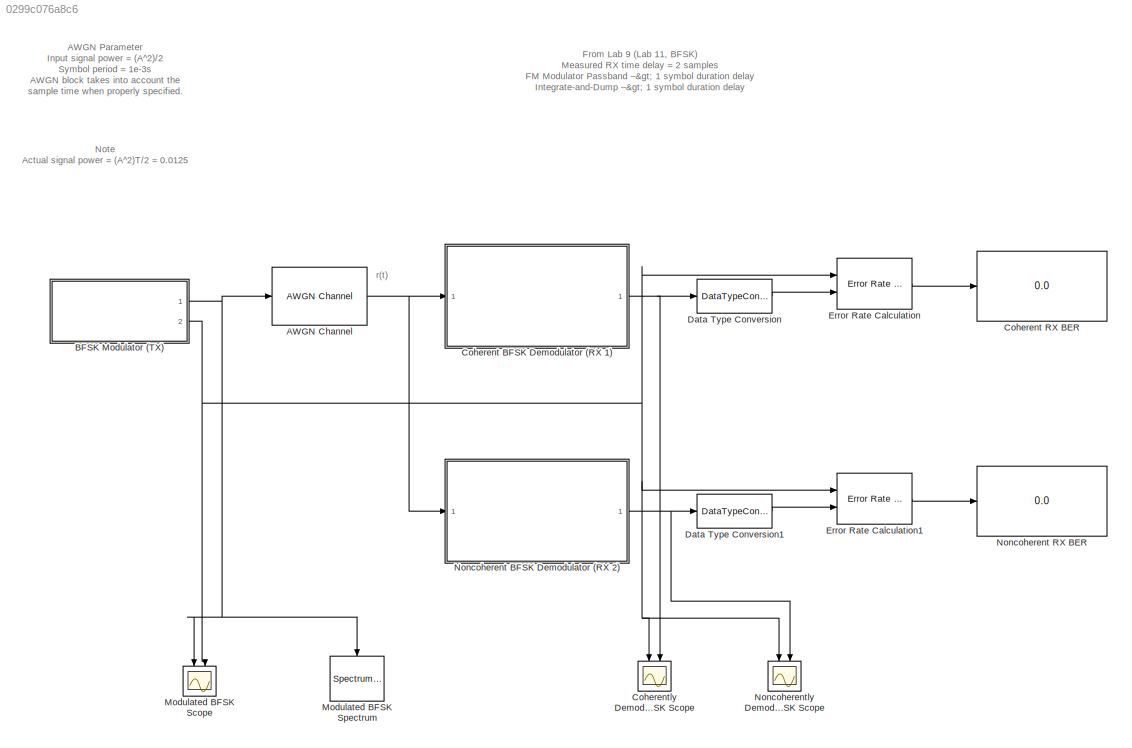
MODEL slx_0299c076a8c6
KIND model
CONFIG AbsTol = auto
CONFIG EnableMultiTasking = off
CONFIG FixedStep = auto
CONFIG MaxStep = auto
CONFIG MinStep = auto
CONFIG RelTol = 1e-3
CONFIG SampleTimeConstraint = Unconstrained
CONFIG SolverName = VariableStepAuto
CONFIG StartTime = 0.0
CONFIG StopTime = 2
BLOCK [Reference] AWGN Channel  REF=commchan3/AWGN
Channel
  Ports = [1, 1]
  SourceBlock = commchan3/AWGN\nChannel
  SourceProductBaseCode = CM
  SourceType = AWGN Channel
  UserDataPersistent = on
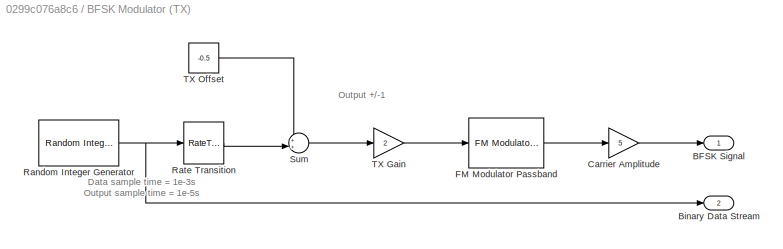
BLOCK [SubSystem] BFSK Modulator (TX)
  Ports = [0, 2]
  RequestExecContextInheritance = off
BLOCK [Outport] BFSK Modulator (TX)/BFSK Signal
BLOCK [Outport] BFSK Modulator (TX)/Binary Data Stream
  Port = 2
BLOCK [Gain] BFSK Modulator (TX)/Carrier Amplitude
  Gain = 5
BLOCK [Reference] BFSK Modulator (TX)/FM Modulator Passband  REF=commanapbnd3/FM
Modulator
Passband
  Ports = [1, 1]
  SourceBlock = commanapbnd3/FM\nModulator\nPassband
  SourceProductBaseCode = CM
  SourceType = FM Modulator Passband
BLOCK [Reference] BFSK Modulator (TX)/Random Integer Generator  REF=commrandsrc3/Random Integer
Generator
  Ports = [0, 1]
  SourceBlock = commrandsrc3/Random Integer\nGenerator
  SourceProductBaseCode = CM
  SourceType = Random Integer Generator
BLOCK [RateTransition] BFSK Modulator (TX)/Rate Transition
  OutPortSampleTime = 1e-5
BLOCK [Sum] BFSK Modulator (TX)/Sum
  Inputs = ++|
  Ports = [2, 1]
BLOCK [Gain] BFSK Modulator (TX)/TX Gain
  Gain = 2
BLOCK [Constant] BFSK Modulator (TX)/TX Offset
  Value = -0.5
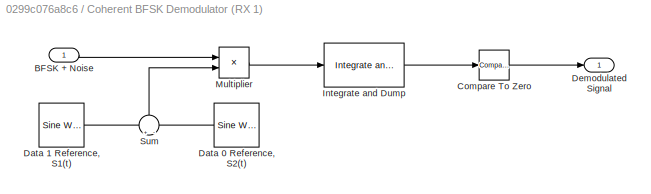
BLOCK [SubSystem] Coherent BFSK Demodulator (RX 1)
  Ports = [1, 1]
  RequestExecContextInheritance = off
BLOCK [Inport] Coherent BFSK Demodulator (RX 1)/BFSK + Noise
BLOCK [Reference] Coherent BFSK Demodulator (RX 1)/Compare To Zero  REF=simulink/Logic and Bit
Operations/Compare
To Zero
  Ports = [1, 1]
  SourceBlock = simulink/Logic and Bit\nOperations/Compare\nTo Zero
  SourceProductBaseCode = SL
  SourceType = Compare To Zero
BLOCK [Reference] Coherent BFSK Demodulator (RX 1)/Data 0 Reference, S2(t)  REF=dspsrcs4/Sine Wave
  Ports = [0, 1]
  SourceBlock = dspsrcs4/Sine Wave
  SourceProductBaseCode = DS
  SourceType = Sine Wave
BLOCK [Reference] Coherent BFSK Demodulator (RX 1)/Data 1 Reference, S1(t)  REF=dspsrcs4/Sine Wave
  Ports = [0, 1]
  SourceBlock = dspsrcs4/Sine Wave
  SourceProductBaseCode = DS
  SourceType = Sine Wave
BLOCK [Outport] Coherent BFSK Demodulator (RX 1)/Demodulated Signal
  OutDataTypeStr = uint8
BLOCK [Reference] Coherent BFSK Demodulator (RX 1)/Integrate and Dump  REF=commfilt2/Integrate
and Dump
  Ports = [1, 1]
  SourceBlock = commfilt2/Integrate\nand Dump
  SourceProductBaseCode = CM
  SourceType = Integrate and Dump
BLOCK [Product] Coherent BFSK Demodulator (RX 1)/Multiplier
  Ports = [2, 1]
BLOCK [Sum] Coherent BFSK Demodulator (RX 1)/Sum
  Inputs = +|-
  NameLocation = right
  Ports = [2, 1]
BLOCK [Display] Coherent RX BER
  Decimation = 14
  Format = long
  Ports = [1]
BLOCK [Scope] Coherently Demodulated BFSK Scope
  Floating = off
  NameLocation = left
  NumInputPorts = 2
  Ports = [2]
  ScopeSpecificationString = Simulink.scopes.TimeScopeBlockCfg('CurrentConfiguration', extmgr.ConfigurationSet(extmgr.Configuration('Core','General UI',true),extmgr.Configuration('Core','Source UI',true),extmgr.Configuration('Sources','WiredSimulink',true,'DataLoggingVariableName','ScopeData1'),extmgr.Configuration('Visuals','Time Domain',true,'SerializedDisplays',{struct('MinYLimReal','-0.08672','MaxYLimReal','1.08069','YLab...<+1910ch>
BLOCK [DataTypeConversion] Data Type Conversion
  OutDataTypeStr = double
  RndMeth = Floor
  SaturateOnIntegerOverflow = off
BLOCK [DataTypeConversion] Data Type Conversion1
  OutDataTypeStr = double
  RndMeth = Floor
  SaturateOnIntegerOverflow = off
BLOCK [Reference] Error Rate Calculation  REF=commsink2/Error Rate
Calculation
  Ports = [2, 1]
  SourceBlock = commsink2/Error Rate\nCalculation
  SourceProductBaseCode = CM
  SourceType = Error Rate Calculation
BLOCK [Reference] Error Rate Calculation1  REF=commsink2/Error Rate
Calculation
  Ports = [2, 1]
  SourceBlock = commsink2/Error Rate\nCalculation
  SourceProductBaseCode = CM
  SourceType = Error Rate Calculation
BLOCK [Scope] Modulated BFSK Scope
  Floating = off
  NameLocation = left
  NumInputPorts = 2
  Ports = [2]
  ScopeSpecificationString = Simulink.scopes.TimeScopeBlockCfg('CurrentConfiguration', extmgr.ConfigurationSet(extmgr.Configuration('Core','General UI',true),extmgr.Configuration('Core','Source UI',true),extmgr.Configuration('Sources','WiredSimulink',true),extmgr.Configuration('Visuals','Time Domain',true,'SerializedDisplays',{struct('MinYLimReal','-6.23767','MaxYLimReal','6.23767','YLabelReal','Amplitude','MinYLimMag','0.000...<+1818ch>
BLOCK [SpectrumAnalyzer] Modulated BFSK Spectrum
  NameLocation = left
  Ports = [1]
  ScopeSpecificationString = spbscopes.SpectrumAnalyzerBlockCfg('CurrentConfiguration', extmgr.ConfigurationSet(extmgr.Configuration('Core','General UI',true),extmgr.Configuration('Core','Source UI',true),extmgr.Configuration('Sources','WiredSimulink',true),extmgr.Configuration('Sources','SPTool',false),extmgr.Configuration('Sources','File',false),extmgr.Configuration('Sources','Workspace',false),extmgr.Configuration('Sources...<+3625ch>
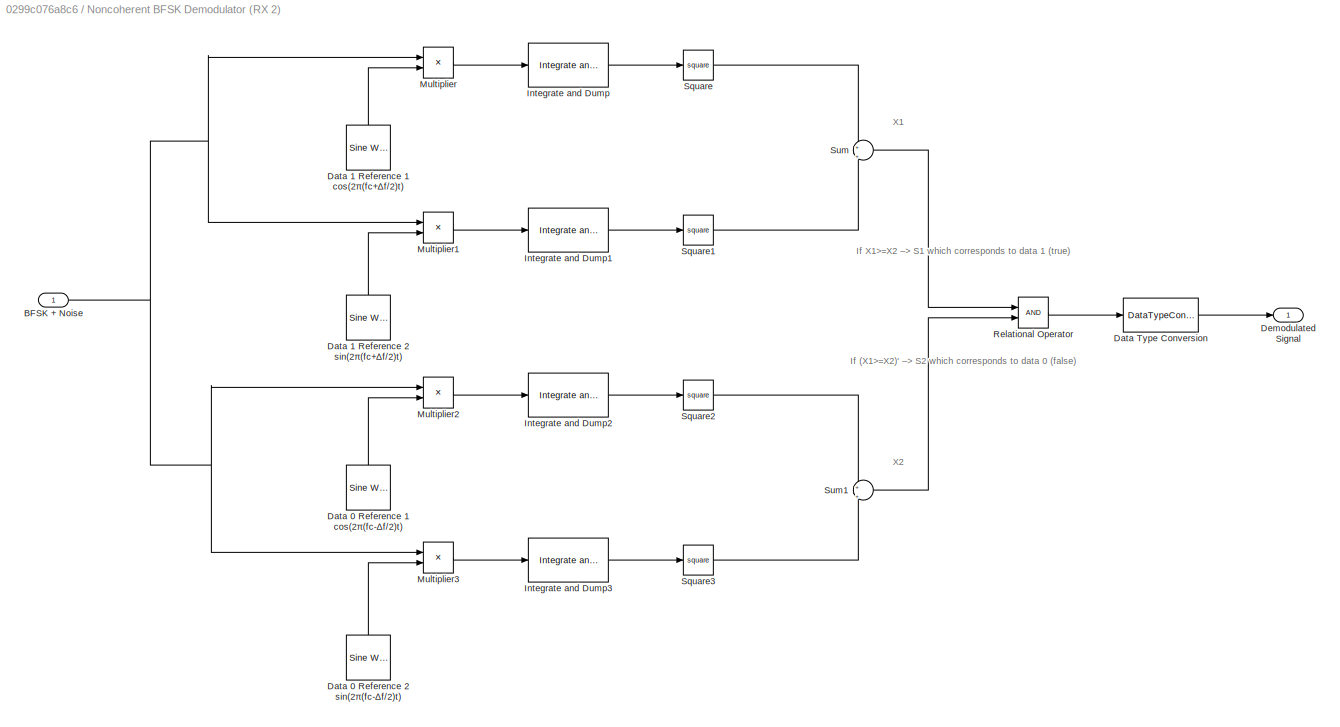
BLOCK [SubSystem] Noncoherent BFSK Demodulator (RX 2)
  Ports = [1, 1]
  RequestExecContextInheritance = off
BLOCK [Inport] Noncoherent BFSK Demodulator (RX 2)/BFSK + Noise
BLOCK [Reference] Noncoherent BFSK Demodulator (RX 2)/Data 0 Reference 1 cos(2π(fc-∆f//2)t)  REF=dspsrcs4/Sine Wave
  NameLocation = left
  Ports = [0, 1]
  SourceBlock = dspsrcs4/Sine Wave
  SourceProductBaseCode = DS
  SourceType = Sine Wave
BLOCK [Reference] Noncoherent BFSK Demodulator (RX 2)/Data 0 Reference 2 sin(2π(fc-∆f//2)t)  REF=dspsrcs4/Sine Wave
  NameLocation = left
  Ports = [0, 1]
  SourceBlock = dspsrcs4/Sine Wave
  SourceProductBaseCode = DS
  SourceType = Sine Wave
BLOCK [Reference] Noncoherent BFSK Demodulator (RX 2)/Data 1 Reference 1 cos(2π(fc+∆f//2)t)  REF=dspsrcs4/Sine Wave
  NameLocation = left
  Ports = [0, 1]
  SourceBlock = dspsrcs4/Sine Wave
  SourceProductBaseCode = DS
  SourceType = Sine Wave
BLOCK [Reference] Noncoherent BFSK Demodulator (RX 2)/Data 1 Reference 2 sin(2π(fc+∆f//2)t)  REF=dspsrcs4/Sine Wave
  NameLocation = left
  Ports = [0, 1]
  SourceBlock = dspsrcs4/Sine Wave
  SourceProductBaseCode = DS
  SourceType = Sine Wave
BLOCK [DataTypeConversion] Noncoherent BFSK Demodulator (RX 2)/Data Type Conversion
  OutDataTypeStr = uint8
  RndMeth = Floor
  SaturateOnIntegerOverflow = off
BLOCK [Outport] Noncoherent BFSK Demodulator (RX 2)/Demodulated Signal
  OutDataTypeStr = uint8
BLOCK [Reference] Noncoherent BFSK Demodulator (RX 2)/Integrate and Dump  REF=commfilt2/Integrate
and Dump
  Ports = [1, 1]
  SourceBlock = commfilt2/Integrate\nand Dump
  SourceProductBaseCode = CM
  SourceType = Integrate and Dump
BLOCK [Reference] Noncoherent BFSK Demodulator (RX 2)/Integrate and Dump1  REF=commfilt2/Integrate
and Dump
  Ports = [1, 1]
  SourceBlock = commfilt2/Integrate\nand Dump
  SourceProductBaseCode = CM
  SourceType = Integrate and Dump
BLOCK [Reference] Noncoherent BFSK Demodulator (RX 2)/Integrate and Dump2  REF=commfilt2/Integrate
and Dump
  Ports = [1, 1]
  SourceBlock = commfilt2/Integrate\nand Dump
  SourceProductBaseCode = CM
  SourceType = Integrate and Dump
BLOCK [Reference] Noncoherent BFSK Demodulator (RX 2)/Integrate and Dump3  REF=commfilt2/Integrate
and Dump
  Ports = [1, 1]
  SourceBlock = commfilt2/Integrate\nand Dump
  SourceProductBaseCode = CM
  SourceType = Integrate and Dump
BLOCK [Product] Noncoherent BFSK Demodulator (RX 2)/Multiplier
  Ports = [2, 1]
BLOCK [Product] Noncoherent BFSK Demodulator (RX 2)/Multiplier1
  Ports = [2, 1]
BLOCK [Product] Noncoherent BFSK Demodulator (RX 2)/Multiplier2
  Ports = [2, 1]
BLOCK [Product] Noncoherent BFSK Demodulator (RX 2)/Multiplier3
  Ports = [2, 1]
BLOCK [RelationalOperator] Noncoherent BFSK Demodulator (RX 2)/Relational Operator
  InputSameDT = off
  Ports = [2, 1]
  RndMeth = Simplest
BLOCK [Math] Noncoherent BFSK Demodulator (RX 2)/Square
  Operator = square
  Ports = [1, 1]
BLOCK [Math] Noncoherent BFSK Demodulator (RX 2)/Square1
  Operator = square
  Ports = [1, 1]
BLOCK [Math] Noncoherent BFSK Demodulator (RX 2)/Square2
  Operator = square
  Ports = [1, 1]
BLOCK [Math] Noncoherent BFSK Demodulator (RX 2)/Square3
  Operator = square
  Ports = [1, 1]
BLOCK [Sum] Noncoherent BFSK Demodulator (RX 2)/Sum
  Inputs = +||+
  Ports = [2, 1]
BLOCK [Sum] Noncoherent BFSK Demodulator (RX 2)/Sum1
  Inputs = +||+
  Ports = [2, 1]
BLOCK [Display] Noncoherent RX BER
  Decimation = 14
  Format = long
  Ports = [1]
BLOCK [Scope] Noncoherently Demodulated BFSK Scope
  Floating = off
  NameLocation = left
  NumInputPorts = 2
  Ports = [2]
  ScopeSpecificationString = Simulink.scopes.TimeScopeBlockCfg('CurrentConfiguration', extmgr.ConfigurationSet(extmgr.Configuration('Core','General UI',true),extmgr.Configuration('Core','Source UI',true),extmgr.Configuration('Sources','WiredSimulink',true,'DataLoggingVariableName','ScopeData1'),extmgr.Configuration('Visuals','Time Domain',true,'SerializedDisplays',{struct('MinYLimReal','-0.125','MaxYLimReal','1.125','YLabelRe...<+1906ch>
ANNOTATION (root): AWGN Parameter Input signal power = (A^2)/2 Symbol period = 1e-3s AWGN block takes into account the sample time when properly specified.
ANNOTATION (root): From Lab 9 (Lab 11, BFSK) Measured RX time delay = 2 samples FM Modulator Passband –> 1 symbol duration delay Integrate-and-Dump –> 1 symbol duration delay
ANNOTATION (root): Note Actual signal power = (A^2)T/2 = 0.0125
ANNOTATION (root): r(t)
ANNOTATION BFSK Modulator (TX): Data sample time = 1e-3s Output sample time = 1e-5s
ANNOTATION BFSK Modulator (TX): Output +/-1
ANNOTATION Noncoherent BFSK Demodulator (RX 2): If (X1>=X2)' –> S2 which corresponds to data 0 (false)
ANNOTATION Noncoherent BFSK Demodulator (RX 2): If X1>=X2 –> S1 which corresponds to data 1 (true)
ANNOTATION Noncoherent BFSK Demodulator (RX 2): X1
ANNOTATION Noncoherent BFSK Demodulator (RX 2): X2
NET AWGN Channel:1 -> Coherent BFSK Demodulator (RX 1):1, Noncoherent BFSK Demodulator (RX 2):1
LINE BFSK Modulator (TX)/Carrier Amplitude:1 -> BFSK Modulator (TX)/BFSK Signal:1
LINE BFSK Modulator (TX)/FM Modulator Passband:1 -> BFSK Modulator (TX)/Carrier Amplitude:1
NET BFSK Modulator (TX)/Random Integer Generator:1 -> BFSK Modulator (TX)/Binary Data Stream:1, BFSK Modulator (TX)/Rate Transition:1
LINE BFSK Modulator (TX)/Rate Transition:1 -> BFSK Modulator (TX)/Sum:2
LINE BFSK Modulator (TX)/Sum:1 -> BFSK Modulator (TX)/TX Gain:1
LINE BFSK Modulator (TX)/TX Gain:1 -> BFSK Modulator (TX)/FM Modulator Passband:1
LINE BFSK Modulator (TX)/TX Offset:1 -> BFSK Modulator (TX)/Sum:1
NET BFSK Modulator (TX):1 -> AWGN Channel:1, Modulated BFSK Scope:1, Modulated BFSK Spectrum:1
NET BFSK Modulator (TX):2 -> Coherently Demodulated BFSK Scope:1, Error Rate Calculation1:1, Error Rate Calculation:1, Modulated BFSK Scope:2, Noncoherently Demodulated BFSK Scope:1
LINE Coherent BFSK Demodulator (RX 1)/BFSK + Noise:1 -> Coherent BFSK Demodulator (RX 1)/Multiplier:1
LINE Coherent BFSK Demodulator (RX 1)/Compare To Zero:1 -> Coherent BFSK Demodulator (RX 1)/Demodulated Signal:1
LINE Coherent BFSK Demodulator (RX 1)/Data 0 Reference, S2(t):1 -> Coherent BFSK Demodulator (RX 1)/Sum:2
LINE Coherent BFSK Demodulator (RX 1)/Data 1 Reference, S1(t):1 -> Coherent BFSK Demodulator (RX 1)/Sum:1
LINE Coherent BFSK Demodulator (RX 1)/Integrate and Dump:1 -> Coherent BFSK Demodulator (RX 1)/Compare To Zero:1
LINE Coherent BFSK Demodulator (RX 1)/Multiplier:1 -> Coherent BFSK Demodulator (RX 1)/Integrate and Dump:1
LINE Coherent BFSK Demodulator (RX 1)/Sum:1 -> Coherent BFSK Demodulator (RX 1)/Multiplier:2
NET Coherent BFSK Demodulator (RX 1):1 -> Coherently Demodulated BFSK Scope:2, Data Type Conversion:1
LINE Data Type Conversion1:1 -> Error Rate Calculation1:2
LINE Data Type Conversion:1 -> Error Rate Calculation:2
LINE Error Rate Calculation1:1 -> Noncoherent RX BER:1
LINE Error Rate Calculation:1 -> Coherent RX BER:1
NET Noncoherent BFSK Demodulator (RX 2)/BFSK + Noise:1 -> Noncoherent BFSK Demodulator (RX 2)/Multiplier1:1, Noncoherent BFSK Demodulator (RX 2)/Multiplier2:1, Noncoherent BFSK Demodulator (RX 2)/Multiplier3:1, Noncoherent BFSK Demodulator (RX 2)/Multiplier:1
LINE Noncoherent BFSK Demodulator (RX 2)/Data 0 Reference 1 cos(2π(fc-∆f//2)t):1 -> Noncoherent BFSK Demodulator (RX 2)/Multiplier2:2
LINE Noncoherent BFSK Demodulator (RX 2)/Data 0 Reference 2 sin(2π(fc-∆f//2)t):1 -> Noncoherent BFSK Demodulator (RX 2)/Multiplier3:2
LINE Noncoherent BFSK Demodulator (RX 2)/Data 1 Reference 1 cos(2π(fc+∆f//2)t):1 -> Noncoherent BFSK Demodulator (RX 2)/Multiplier:2
LINE Noncoherent BFSK Demodulator (RX 2)/Data 1 Reference 2 sin(2π(fc+∆f//2)t):1 -> Noncoherent BFSK Demodulator (RX 2)/Multiplier1:2
LINE Noncoherent BFSK Demodulator (RX 2)/Data Type Conversion:1 -> Noncoherent BFSK Demodulator (RX 2)/Demodulated Signal:1
LINE Noncoherent BFSK Demodulator (RX 2)/Integrate and Dump1:1 -> Noncoherent BFSK Demodulator (RX 2)/Square1:1
LINE Noncoherent BFSK Demodulator (RX 2)/Integrate and Dump2:1 -> Noncoherent BFSK Demodulator (RX 2)/Square2:1
LINE Noncoherent BFSK Demodulator (RX 2)/Integrate and Dump3:1 -> Noncoherent BFSK Demodulator (RX 2)/Square3:1
LINE Noncoherent BFSK Demodulator (RX 2)/Integrate and Dump:1 -> Noncoherent BFSK Demodulator (RX 2)/Square:1
LINE Noncoherent BFSK Demodulator (RX 2)/Multiplier1:1 -> Noncoherent BFSK Demodulator (RX 2)/Integrate and Dump1:1
LINE Noncoherent BFSK Demodulator (RX 2)/Multiplier2:1 -> Noncoherent BFSK Demodulator (RX 2)/Integrate and Dump2:1
LINE Noncoherent BFSK Demodulator (RX 2)/Multiplier3:1 -> Noncoherent BFSK Demodulator (RX 2)/Integrate and Dump3:1
LINE Noncoherent BFSK Demodulator (RX 2)/Multiplier:1 -> Noncoherent BFSK Demodulator (RX 2)/Integrate and Dump:1
LINE Noncoherent BFSK Demodulator (RX 2)/Relational Operator:1 -> Noncoherent BFSK Demodulator (RX 2)/Data Type Conversion:1
LINE Noncoherent BFSK Demodulator (RX 2)/Square1:1 -> Noncoherent BFSK Demodulator (RX 2)/Sum:2
LINE Noncoherent BFSK Demodulator (RX 2)/Square2:1 -> Noncoherent BFSK Demodulator (RX 2)/Sum1:1
LINE Noncoherent BFSK Demodulator (RX 2)/Square3:1 -> Noncoherent BFSK Demodulator (RX 2)/Sum1:2
LINE Noncoherent BFSK Demodulator (RX 2)/Square:1 -> Noncoherent BFSK Demodulator (RX 2)/Sum:1
LINE Noncoherent BFSK Demodulator (RX 2)/Sum1:1 -> Noncoherent BFSK Demodulator (RX 2)/Relational Operator:2
LINE Noncoherent BFSK Demodulator (RX 2)/Sum:1 -> Noncoherent BFSK Demodulator (RX 2)/Relational Operator:1
NET Noncoherent BFSK Demodulator (RX 2):1 -> Data Type Conversion1:1, Noncoherently Demodulated BFSK Scope:2
note: NET lines group one-source signal fan-out (src -> all destinations, sorted); 1:1 wires keep LINE
